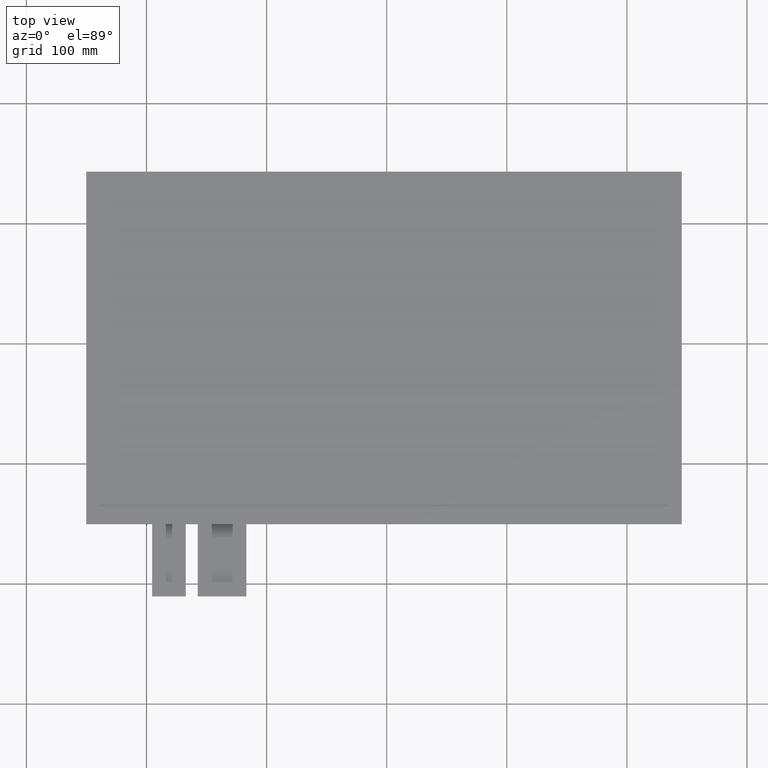
[diagram: clean part render]
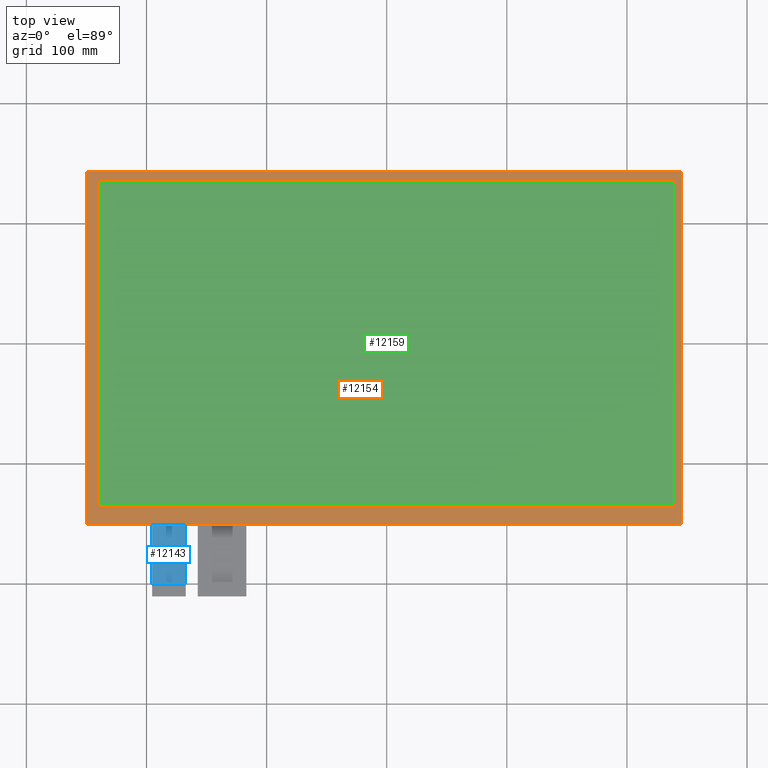
[diagram: same view with three faces highlighted in distinct colors, each labeled with its STEP entity id]
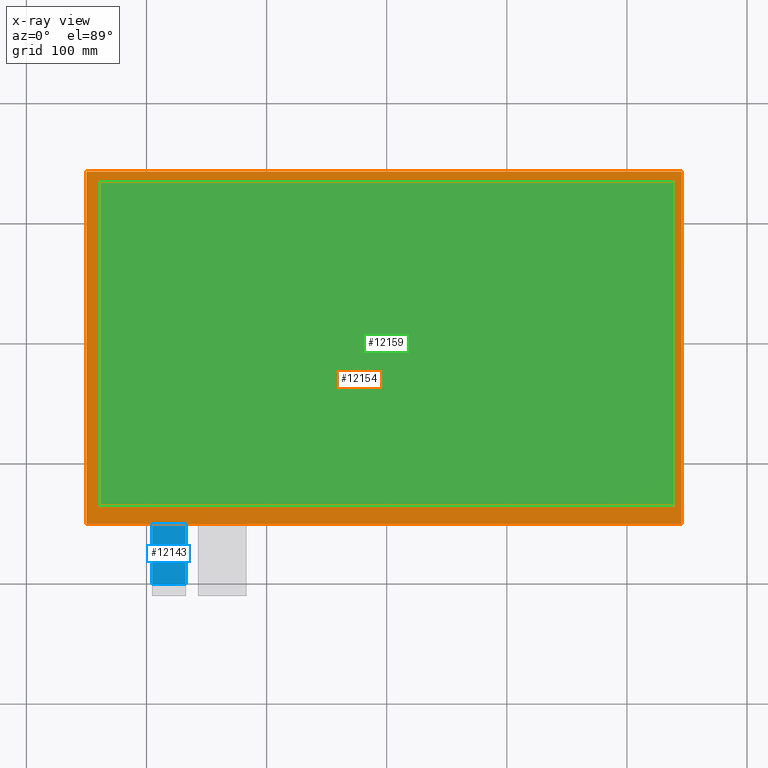
[diagram: x-ray of the same camera — body ghosted, the three highlighted faces saturated]
A machine part, top view with three faces highlighted in distinct colors.
The next image is the same camera in x-ray (body ghosted, the three faces saturated) — at least one of them is partly hidden behind the body in this view.
Their STEP definitions:

[orange] entity #12154 — the highlighted planar face has unit normal (0, 0, 1).
#126=FACE_BOUND('',#1854,.T.);
#696=PLANE('',#12760);
#1274=FACE_OUTER_BOUND('',#1853,.T.);
#1853=EDGE_LOOP('',(#11539,#11540,#11541,#11542));
#1854=EDGE_LOOP('',(#11543,#11544,#11545,#11546));
#3547=LINE('',#19039,#5255);
#3551=LINE('',#19047,#5259);
#3554=LINE('',#19053,#5262);
#3557=LINE('',#19058,#5265);
#3559=LINE('',#19064,#5267);
#3560=LINE('',#19066,#5268);
#3561=LINE('',#19068,#5269);
#3562=LINE('',#19069,#5270);
#5255=VECTOR('',#15603,10.);
#5259=VECTOR('',#15609,10.);
#5262=VECTOR('',#15614,10.);
#5265=VECTOR('',#15619,10.);
#5267=VECTOR('',#15625,10.);
#5268=VECTOR('',#15626,10.);
#5269=VECTOR('',#15627,10.);
#5270=VECTOR('',#15628,10.);
#6415=VERTEX_POINT('',#19037);
#6416=VERTEX_POINT('',#19038);
#6419=VERTEX_POINT('',#19046);
#6421=VERTEX_POINT('',#19052);
#6423=VERTEX_POINT('',#19062);
#6424=VERTEX_POINT('',#19063);
#6425=VERTEX_POINT('',#19065);
#6426=VERTEX_POINT('',#19067);
#8123=EDGE_CURVE('',#6415,#6416,#3547,.T.);
#8127=EDGE_CURVE('',#6419,#6415,#3551,.T.);
#8130=EDGE_CURVE('',#6421,#6419,#3554,.T.);
#8133=EDGE_CURVE('',#6416,#6421,#3557,.T.);
#8135=EDGE_CURVE('',#6423,#6424,#3559,.T.);
#8136=EDGE_CURVE('',#6424,#6425,#3560,.T.);
#8137=EDGE_CURVE('',#6425,#6426,#3561,.T.);
#8138=EDGE_CURVE('',#6426,#6423,#3562,.T.);
#11539=ORIENTED_EDGE('',*,*,#8135,.T.);
#11540=ORIENTED_EDGE('',*,*,#8136,.T.);
#11541=ORIENTED_EDGE('',*,*,#8137,.T.);
#11542=ORIENTED_EDGE('',*,*,#8138,.T.);
#11543=ORIENTED_EDGE('',*,*,#8123,.T.);
#11544=ORIENTED_EDGE('',*,*,#8133,.T.);
#11545=ORIENTED_EDGE('',*,*,#8130,.T.);
#11546=ORIENTED_EDGE('',*,*,#8127,.T.);
#12154=ADVANCED_FACE('',(#1274,#126),#696,.T.);
#12760=AXIS2_PLACEMENT_3D('',#19061,#15623,#15624);
#15603=DIRECTION('',(-2.61902961946222E-16,1.,0.));
#15609=DIRECTION('',(-1.,-1.4806058257139E-16,0.));
#15614=DIRECTION('',(0.,-1.,0.));
#15619=DIRECTION('',(1.,0.,0.));
#15623=DIRECTION('center_axis',(0.,0.,1.));
#15624=DIRECTION('ref_axis',(1.,0.,0.));
#15625=DIRECTION('',(-1.,0.,0.));
#15626=DIRECTION('',(1.2100523429157E-16,-1.,0.));
#15627=DIRECTION('',(1.,1.0748427830175E-16,0.));
#15628=DIRECTION('',(-1.2100523429157E-16,1.,0.));
#19037=CARTESIAN_POINT('',(-239.95,-135.65,0.));
#19038=CARTESIAN_POINT('',(-239.95,135.65,0.));
#19039=CARTESIAN_POINT('',(-239.95,-69.6000000000001,0.));
#19046=CARTESIAN_POINT('',(239.95,-135.65,0.));
#19047=CARTESIAN_POINT('',(118.85,-135.65,0.));
#19052=CARTESIAN_POINT('',(239.95,135.65,0.));
#19053=CARTESIAN_POINT('',(239.95,66.05,0.));
#19058=CARTESIAN_POINT('',(-121.1,135.65,0.));
#19061=CARTESIAN_POINT('Origin',(-2.24999999999996,-3.55,0.));
#19062=CARTESIAN_POINT('',(245.65,143.25,0.));
#19063=CARTESIAN_POINT('',(-250.15,143.25,0.));
#19064=CARTESIAN_POINT('',(245.65,143.25,0.));
#19065=CARTESIAN_POINT('',(-250.15,-150.35,0.));
#19066=CARTESIAN_POINT('',(-250.15,143.25,0.));
#19067=CARTESIAN_POINT('',(245.65,-150.35,0.));
#19068=CARTESIAN_POINT('',(-250.15,-150.35,0.));
#19069=CARTESIAN_POINT('',(245.65,-150.35,0.));

[blue] entity #12143 — the highlighted planar face has unit normal (0, 0, 1).
#685=PLANE('',#12749);
#1263=FACE_OUTER_BOUND('',#1841,.T.);
#1841=EDGE_LOOP('',(#11491,#11492,#11493,#11494));
#3506=LINE('',#18956,#5214);
#3521=LINE('',#18986,#5229);
#3532=LINE('',#19007,#5240);
#3533=LINE('',#19009,#5241);
#5214=VECTOR('',#15528,10.);
#5229=VECTOR('',#15553,10.);
#5240=VECTOR('',#15574,10.);
#5241=VECTOR('',#15577,10.);
#6390=VERTEX_POINT('',#18953);
#6391=VERTEX_POINT('',#18955);
#6401=VERTEX_POINT('',#18985);
#6406=VERTEX_POINT('',#19005);
#8082=EDGE_CURVE('',#6391,#6390,#3506,.T.);
#8097=EDGE_CURVE('',#6390,#6401,#3521,.T.);
#8108=EDGE_CURVE('',#6401,#6406,#3532,.T.);
#8109=EDGE_CURVE('',#6391,#6406,#3533,.T.);
#11491=ORIENTED_EDGE('',*,*,#8097,.T.);
#11492=ORIENTED_EDGE('',*,*,#8108,.T.);
#11493=ORIENTED_EDGE('',*,*,#8109,.F.);
#11494=ORIENTED_EDGE('',*,*,#8082,.T.);
#12143=ADVANCED_FACE('',(#1263),#685,.T.);
#12749=AXIS2_PLACEMENT_3D('',#19008,#15575,#15576);
#15528=DIRECTION('',(0.,-1.,0.));
#15553=DIRECTION('',(1.,0.,0.));
#15574=DIRECTION('',(5.92118946466749E-16,1.,0.));
#15575=DIRECTION('center_axis',(0.,0.,1.));
#15576=DIRECTION('ref_axis',(1.,0.,0.));
#15577=DIRECTION('',(1.,1.0748427830175E-16,0.));
#18953=CARTESIAN_POINT('',(-195.35,-200.35,-1.1));
#18955=CARTESIAN_POINT('',(-195.35,-150.35,-1.1));
#18956=CARTESIAN_POINT('',(-195.35,-150.35,-1.1));
#18985=CARTESIAN_POINT('',(-167.35,-200.35,-1.1));
#18986=CARTESIAN_POINT('',(-174.35,-200.35,-1.1));
#19005=CARTESIAN_POINT('',(-167.35,-150.35,-1.1));
#19007=CARTESIAN_POINT('',(-167.35,-210.35,-1.1));
#19008=CARTESIAN_POINT('Origin',(-181.35,-180.35,-1.1));
#19009=CARTESIAN_POINT('',(32.1500000000001,-150.35,-1.1));

[green] entity #12159 — the highlighted planar face has unit normal (0, 0, 1).
#701=PLANE('',#12765);
#1279=FACE_OUTER_BOUND('',#1861,.T.);
#1861=EDGE_LOOP('',(#11571,#11572,#11573,#11574));
#3535=LINE('',#19015,#5243);
#3539=LINE('',#19023,#5247);
#3542=LINE('',#19029,#5250);
#3545=LINE('',#19034,#5253);
#5243=VECTOR('',#15583,10.);
#5247=VECTOR('',#15589,10.);
#5250=VECTOR('',#15594,10.);
#5253=VECTOR('',#15599,10.);
#6407=VERTEX_POINT('',#19013);
#6408=VERTEX_POINT('',#19014);
#6411=VERTEX_POINT('',#19022);
#6413=VERTEX_POINT('',#19028);
#8111=EDGE_CURVE('',#6407,#6408,#3535,.T.);
#8115=EDGE_CURVE('',#6411,#6407,#3539,.T.);
#8118=EDGE_CURVE('',#6413,#6411,#3542,.T.);
#8121=EDGE_CURVE('',#6408,#6413,#3545,.T.);
#11571=ORIENTED_EDGE('',*,*,#8111,.T.);
#11572=ORIENTED_EDGE('',*,*,#8121,.T.);
#11573=ORIENTED_EDGE('',*,*,#8118,.T.);
#11574=ORIENTED_EDGE('',*,*,#8115,.T.);
#12159=ADVANCED_FACE('',(#1279),#701,.T.);
#12765=AXIS2_PLACEMENT_3D('',#19086,#15645,#15646);
#15583=DIRECTION('',(1.,0.,0.));
#15589=DIRECTION('',(0.,-1.,0.));
#15594=DIRECTION('',(-1.,0.,0.));
#15599=DIRECTION('',(0.,1.,0.));
#15645=DIRECTION('center_axis',(0.,0.,1.));
#15646=DIRECTION('ref_axis',(1.,0.,0.));
#19013=CARTESIAN_POINT('',(-238.35,-134.05,0.));
#19014=CARTESIAN_POINT('',(238.35,-134.05,0.));
#19015=CARTESIAN_POINT('',(-120.3,-134.05,0.));
#19022=CARTESIAN_POINT('',(-238.35,134.05,0.));
#19023=CARTESIAN_POINT('',(-238.35,65.25,0.));
#19028=CARTESIAN_POINT('',(238.35,134.05,0.));
#19029=CARTESIAN_POINT('',(118.05,134.05,0.));
#19034=CARTESIAN_POINT('',(238.35,-68.8,0.));
#19086=CARTESIAN_POINT('Origin',(-2.24999999999996,-3.55,0.));